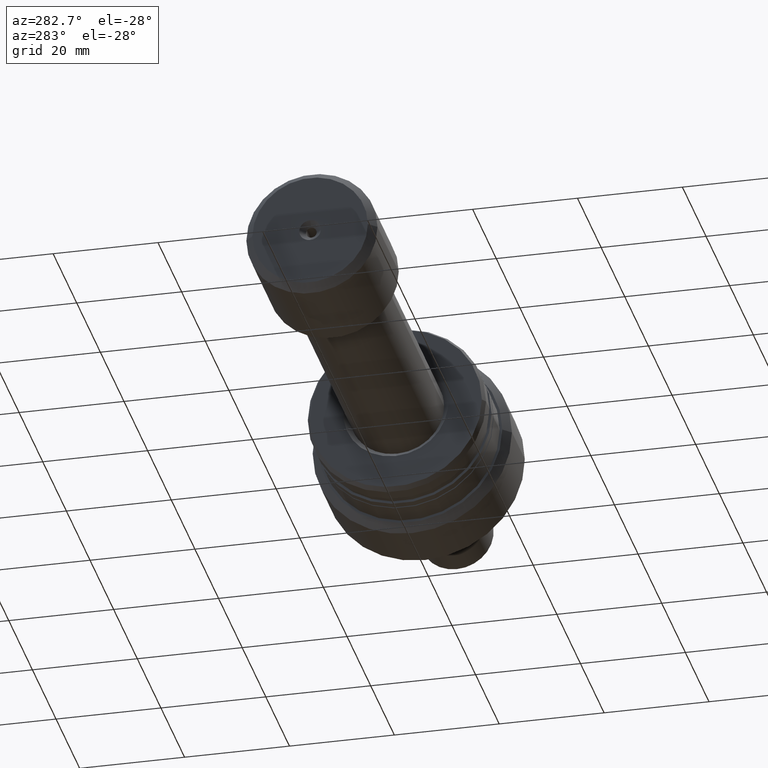
[diagram: clean part render]
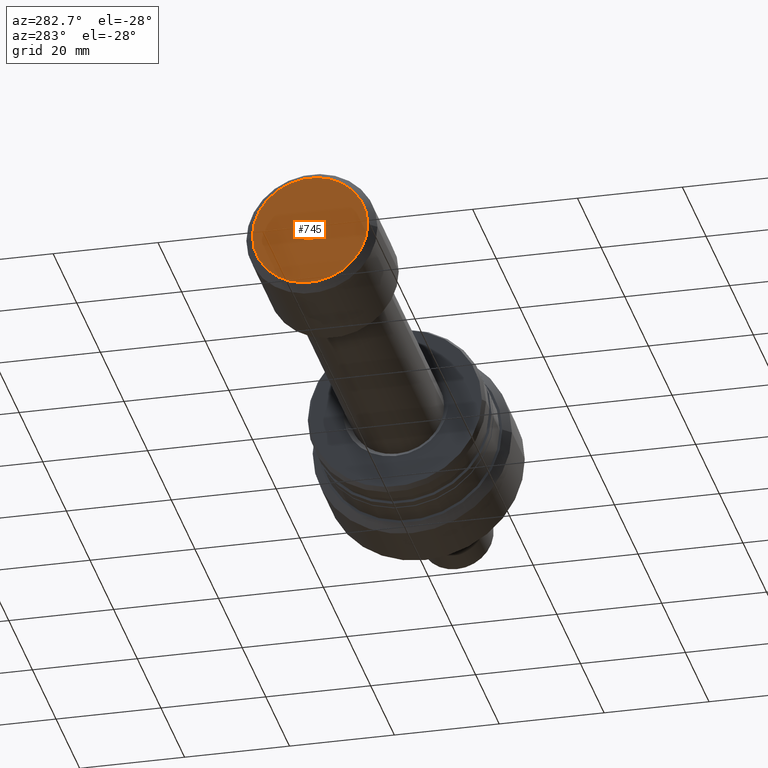
[diagram: same view with one face highlighted and labeled with its STEP entity id]
A machine part, auxiliary view. The second image highlights one B-rep face of the part: STEP entity #745.
In plain terms, the highlighted planar face has unit normal (-1, -0, 0).
Its self-contained STEP definition (entity closure, byte-faithful):
#16 = VERTEX_POINT ( 'NONE', #2505 ) ;
#69 = VERTEX_POINT ( 'NONE', #1456 ) ;
#112 = DIRECTION ( 'NONE',  ( 1.000000000000000000, 1.069542322069065801E-17, 0.000000000000000000 ) ) ;
#175 = CIRCLE ( 'NONE', #2344, 2.075000000000007283 ) ;
#226 = CARTESIAN_POINT ( 'NONE',  ( 1.229461823634491368E-15, 1.314961453745302249E-32, 0.000000000000000000 ) ) ;
#247 = FACE_OUTER_BOUND ( 'NONE', #2899, .T. ) ;
#462 = DIRECTION ( 'NONE',  ( -1.000000000000000000, -1.069542322069065801E-17, -0.000000000000000000 ) ) ;
#503 = CARTESIAN_POINT ( 'NONE',  ( 6.147309118172456842E-16, 2.541142108230766946E-16, -2.075000000000007283 ) ) ;
#585 = DIRECTION ( 'NONE',  ( 1.069542322069066263E-17, -1.000000000000000000, 0.000000000000000000 ) ) ;
#671 = CARTESIAN_POINT ( 'NONE',  ( 1.229461823634491368E-15, 1.314961453745302249E-32, 0.000000000000000000 ) ) ;
#684 = ORIENTED_EDGE ( 'NONE', *, *, #1261, .T. ) ;
#742 = CIRCLE ( 'NONE', #2146, 2.075000000000007283 ) ;
#745 = ADVANCED_FACE ( 'NONE', ( #2248, #247 ), #2873, .T. ) ;
#747 = CARTESIAN_POINT ( 'NONE',  ( 6.147309118172456842E-16, 0.000000000000000000, 0.000000000000000000 ) ) ;
#925 = EDGE_CURVE ( 'NONE', #1442, #16, #742, .T. ) ;
#969 = DIRECTION ( 'NONE',  ( 1.000000000000000000, 1.069542322069065801E-17, 0.000000000000000000 ) ) ;
#1123 = DIRECTION ( 'NONE',  ( -1.000000000000000000, -1.069542322069065801E-17, -0.000000000000000000 ) ) ;
#1230 = CARTESIAN_POINT ( 'NONE',  ( 6.147309118172456842E-16, 0.000000000000000000, 0.000000000000000000 ) ) ;
#1261 = EDGE_CURVE ( 'NONE', #69, #1712, #1915, .T. ) ;
#1328 = DIRECTION ( 'NONE',  ( -1.000000000000000000, -1.069542322069065801E-17, 0.000000000000000000 ) ) ;
#1442 = VERTEX_POINT ( 'NONE', #503 ) ;
#1456 = CARTESIAN_POINT ( 'NONE',  ( 1.347111479062088602E-15, -11.00000000000000178, 1.438959988998140160E-15 ) ) ;
#1539 = DIRECTION ( 'NONE',  ( 1.069542322069065647E-17, -1.000000000000000000, 0.000000000000000000 ) ) ;
#1584 = EDGE_CURVE ( 'NONE', #16, #1442, #175, .T. ) ;
#1712 = VERTEX_POINT ( 'NONE', #2237 ) ;
#1807 = CARTESIAN_POINT ( 'NONE',  ( 6.147309118172456842E-16, 6.574807268726511244E-33, 0.000000000000000000 ) ) ;
#1861 = DIRECTION ( 'NONE',  ( 1.069542322069066263E-17, -1.000000000000000000, 0.000000000000000000 ) ) ;
#1915 = CIRCLE ( 'NONE', #2666, 11.00000000000000178 ) ;
#1923 = CIRCLE ( 'NONE', #2626, 11.00000000000000178 ) ;
#1977 = EDGE_LOOP ( 'NONE', ( #1981, #2455 ) ) ;
#1981 = ORIENTED_EDGE ( 'NONE', *, *, #1584, .T. ) ;
#2120 = ORIENTED_EDGE ( 'NONE', *, *, #2745, .T. ) ;
#2146 = AXIS2_PLACEMENT_3D ( 'NONE', #747, #969, #1861 ) ;
#2233 = DIRECTION ( 'NONE',  ( 1.069542322069065801E-17, -1.000000000000000000, 0.000000000000000000 ) ) ;
#2237 = CARTESIAN_POINT ( 'NONE',  ( 1.111812168206894135E-15, 11.00000000000000178, 0.000000000000000000 ) ) ;
#2242 = DIRECTION ( 'NONE',  ( 1.069542322069065647E-17, -1.000000000000000000, 0.000000000000000000 ) ) ;
#2248 = FACE_BOUND ( 'NONE', #1977, .T. ) ;
#2292 = AXIS2_PLACEMENT_3D ( 'NONE', #1807, #1328, #2233 ) ;
#2344 = AXIS2_PLACEMENT_3D ( 'NONE', #1230, #112, #585 ) ;
#2455 = ORIENTED_EDGE ( 'NONE', *, *, #925, .T. ) ;
#2505 = CARTESIAN_POINT ( 'NONE',  ( 6.147309118172456842E-16, 0.000000000000000000, 2.075000000000007283 ) ) ;
#2626 = AXIS2_PLACEMENT_3D ( 'NONE', #226, #1123, #1539 ) ;
#2666 = AXIS2_PLACEMENT_3D ( 'NONE', #671, #462, #2242 ) ;
#2745 = EDGE_CURVE ( 'NONE', #1712, #69, #1923, .T. ) ;
#2873 = PLANE ( 'NONE',  #2292 ) ;
#2899 = EDGE_LOOP ( 'NONE', ( #2120, #684 ) ) ;